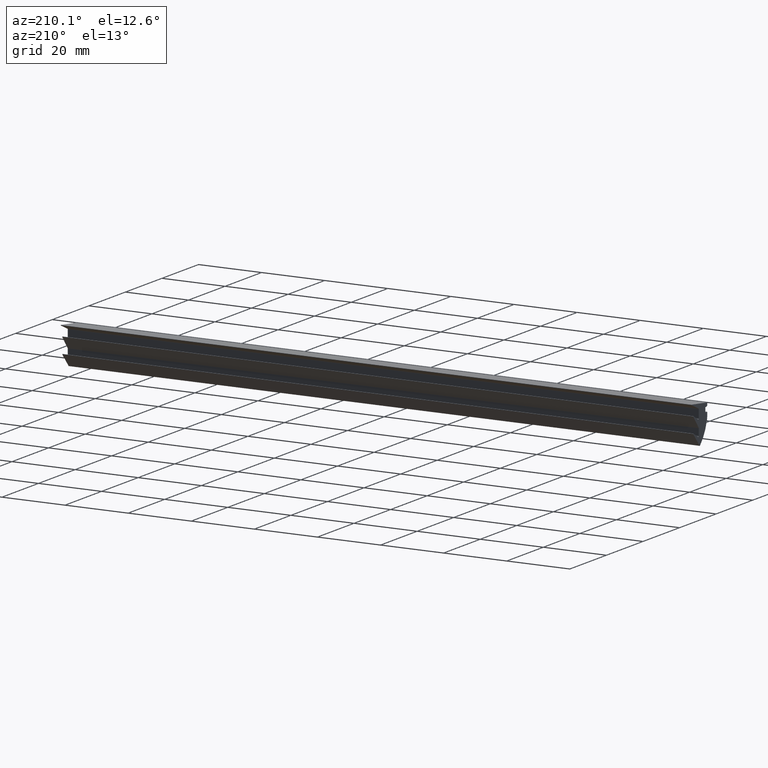
[diagram: clean part render]
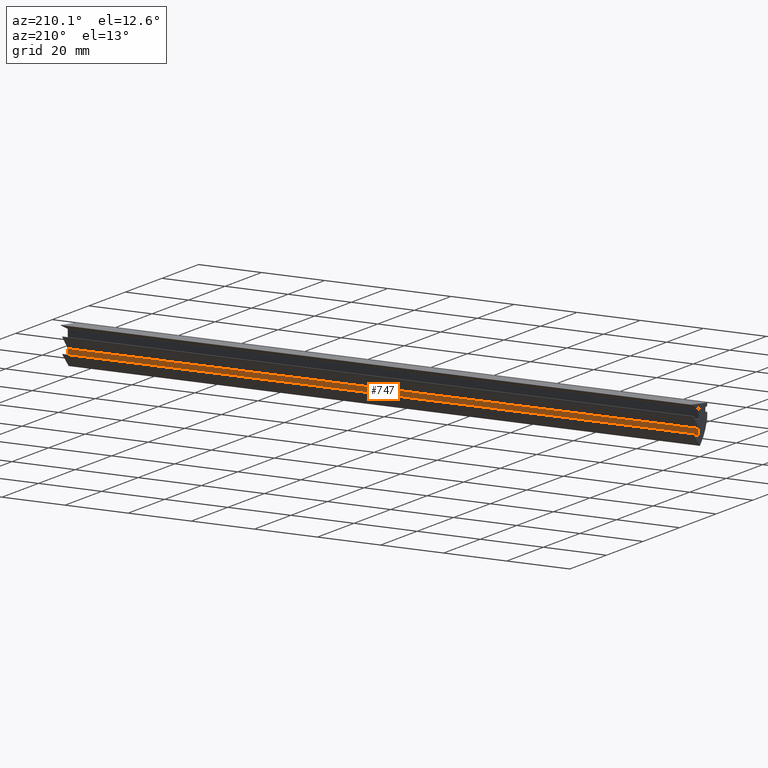
[diagram: same view with one face highlighted and labeled with its STEP entity id]
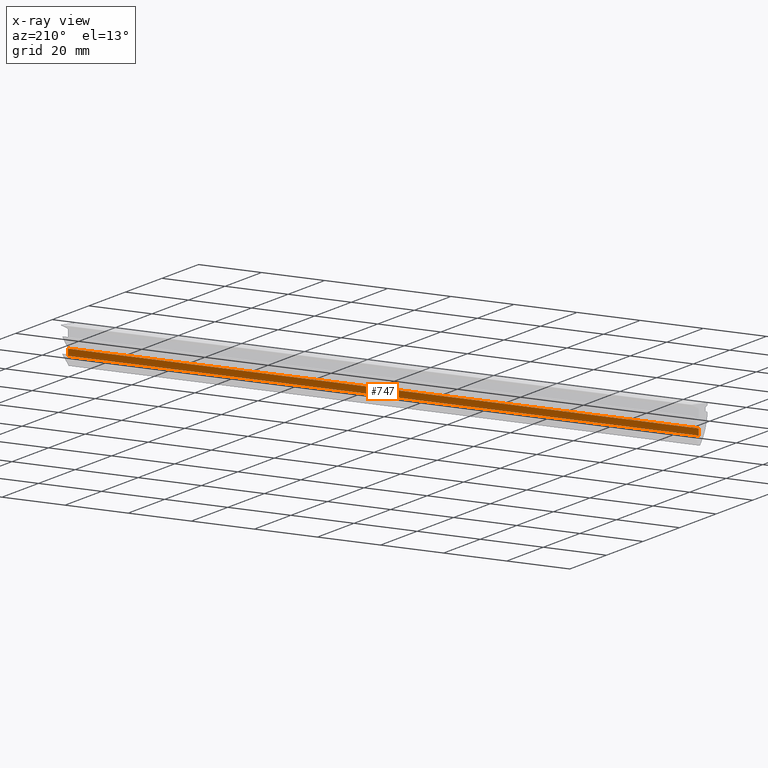
[diagram: x-ray of the same camera — body ghosted, the highlighted face saturated]
A machine part, auxiliary view. The second image highlights one B-rep face of the part: STEP entity #747.
The next image is the same camera in x-ray: the body ghosted, the highlighted face saturated — about 0% of this face is hidden behind the body in this view.
In plain terms, the highlighted planar face has unit normal (0, 1, 0).
Its self-contained STEP definition (entity closure, byte-faithful):
#689=CARTESIAN_POINT('',(0.0,0.497328523124963,4.975053606081678));
#690=VERTEX_POINT('',#689);
#699=CARTESIAN_POINT('',(200.0,0.497328523124963,4.975053606081678));
#700=VERTEX_POINT('',#699);
#708=CARTESIAN_POINT('',(200.0,0.497328523124963,4.975053606081678));
#709=DIRECTION('',(-1.0,0.0,0.0));
#710=VECTOR('',#709,200.0);
#711=LINE('',#708,#710);
#712=EDGE_CURVE('',#700,#690,#711,.T.);
#717=CARTESIAN_POINT('',(210.0,0.497328523124963,2.818878702440099));
#718=DIRECTION('',(0.0,1.0,0.0));
#719=DIRECTION('',(-1.0,0.0,0.0));
#720=AXIS2_PLACEMENT_3D('',#717,#718,#719);
#721=PLANE('',#720);
#722=CARTESIAN_POINT('',(0.0,0.497328523124963,2.921553697851604));
#723=VERTEX_POINT('',#722);
#724=CARTESIAN_POINT('',(0.0,0.497328523124963,4.975053606081678));
#725=DIRECTION('',(0.0,0.0,-1.0));
#726=VECTOR('',#725,2.053499908230075);
#727=LINE('',#724,#726);
#728=EDGE_CURVE('',#690,#723,#727,.T.);
#729=ORIENTED_EDGE('',*,*,#728,.F.);
#730=ORIENTED_EDGE('',*,*,#712,.F.);
#731=CARTESIAN_POINT('',(200.0,0.497328523124963,2.921553697851604));
#732=VERTEX_POINT('',#731);
#733=CARTESIAN_POINT('',(200.0,0.497328523124963,4.975053606081678));
#734=DIRECTION('',(0.0,0.0,-1.0));
#735=VECTOR('',#734,2.053499908230075);
#736=LINE('',#733,#735);
#737=EDGE_CURVE('',#700,#732,#736,.T.);
#738=ORIENTED_EDGE('',*,*,#737,.T.);
#739=CARTESIAN_POINT('',(200.0,0.497328523124963,2.921553697851604));
#740=DIRECTION('',(-1.0,0.0,0.0));
#741=VECTOR('',#740,200.0);
#742=LINE('',#739,#741);
#743=EDGE_CURVE('',#732,#723,#742,.T.);
#744=ORIENTED_EDGE('',*,*,#743,.T.);
#745=EDGE_LOOP('',(#729,#730,#738,#744));
#746=FACE_OUTER_BOUND('',#745,.T.);
#747=ADVANCED_FACE('',(#746),#721,.T.);